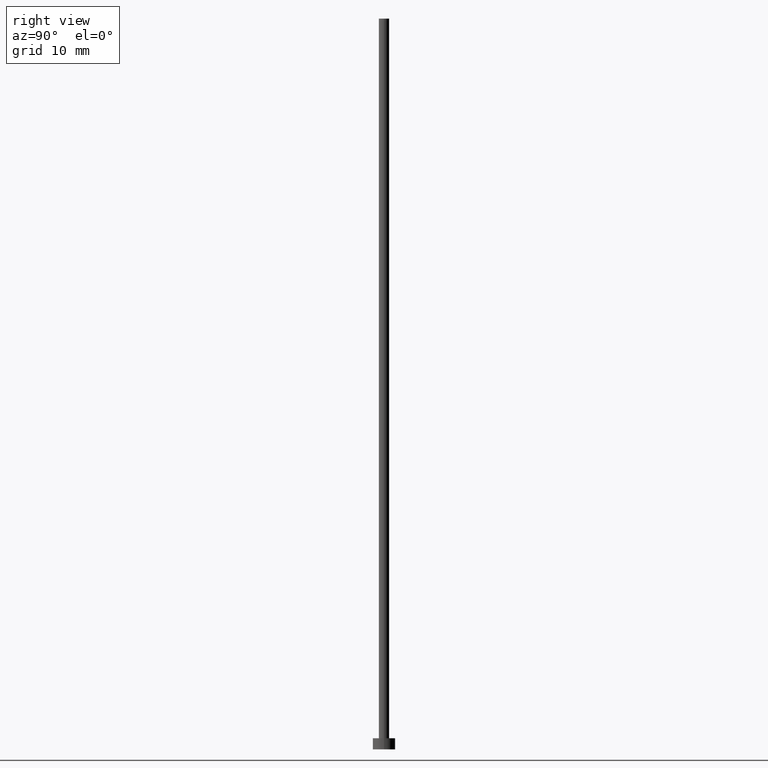
[diagram: clean part render]
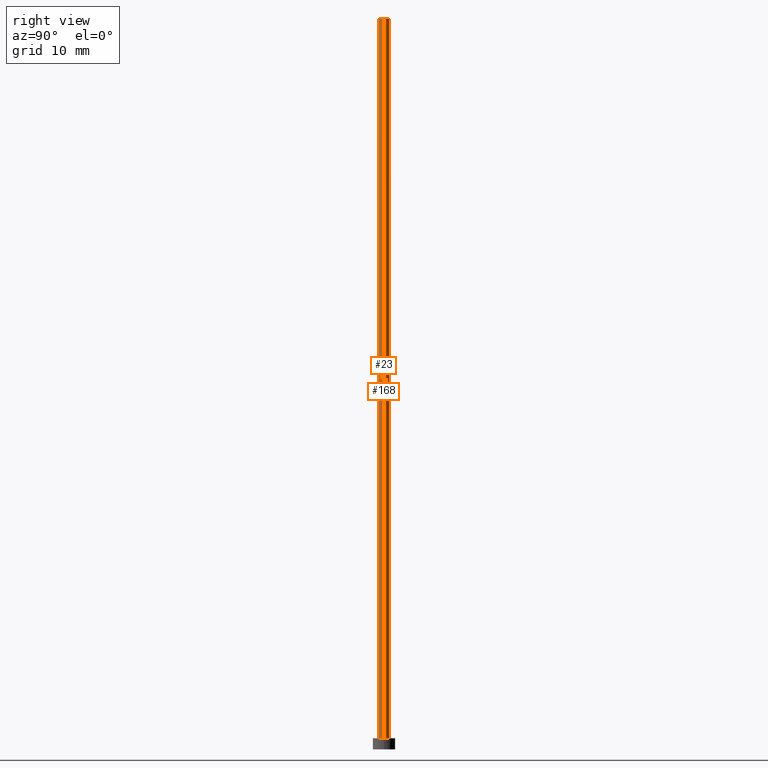
[diagram: same view with one multi-face feature highlighted, each face labeled with its STEP entity id]
A machine part, right view. The highlighted faces form ONE feature: a constant-radius fillet chain: 2 tangent blend faces with common blend radius 0.7 mm. The faces share edges in the B-rep.
Their STEP definitions:
[1] entity #168 (Cylinder):
#5 = ORIENTED_EDGE ( 'NONE', *, *, #35, .F. ) ;
#8 = VERTEX_POINT ( 'NONE', #9 ) ;
#9 = CARTESIAN_POINT ( 'NONE',  ( -0.6999999999999999556, 0.000000000000000000, 98.00000000000000000 ) ) ;
#14 = CYLINDRICAL_SURFACE ( 'NONE', #42, 0.6999999999999999556 ) ;
#15 = CIRCLE ( 'NONE', #65, 0.6999999999999999556 ) ;
#19 = CARTESIAN_POINT ( 'NONE',  ( 0.6999999999999999556, 8.572527594031471957E-17, 98.00000000000000000 ) ) ;
#31 = VERTEX_POINT ( 'NONE', #226 ) ;
#35 = EDGE_CURVE ( 'NONE', #8, #51, #152, .T. ) ;
#42 = AXIS2_PLACEMENT_3D ( 'NONE', #140, #95, #213 ) ;
#45 = EDGE_CURVE ( 'NONE', #211, #8, #190, .T. ) ;
#47 = CARTESIAN_POINT ( 'NONE',  ( 0.000000000000000000, 0.000000000000000000, 98.00000000000000000 ) ) ;
#49 = ORIENTED_EDGE ( 'NONE', *, *, #217, .T. ) ;
#51 = VERTEX_POINT ( 'NONE', #178 ) ;
#65 = AXIS2_PLACEMENT_3D ( 'NONE', #93, #98, #203 ) ;
#93 = CARTESIAN_POINT ( 'NONE',  ( 0.000000000000000000, 0.000000000000000000, 1.500000000000000000 ) ) ;
#95 = DIRECTION ( 'NONE',  ( -0.000000000000000000, -0.000000000000000000, -1.000000000000000000 ) ) ;
#98 = DIRECTION ( 'NONE',  ( 0.000000000000000000, 0.000000000000000000, 1.000000000000000000 ) ) ;
#122 = CARTESIAN_POINT ( 'NONE',  ( 0.6999999999999999556, 8.572527594031471957E-17, 98.00000000000000000 ) ) ;
#129 = AXIS2_PLACEMENT_3D ( 'NONE', #47, #247, #249 ) ;
#136 = EDGE_LOOP ( 'NONE', ( #248, #49, #230, #5 ) ) ;
#140 = CARTESIAN_POINT ( 'NONE',  ( 0.000000000000000000, 0.000000000000000000, 98.00000000000000000 ) ) ;
#152 = LINE ( 'NONE', #193, #228 ) ;
#168 = ADVANCED_FACE ( 'NONE', ( #197 ), #14, .T. ) ;
#169 = VECTOR ( 'NONE', #232, 1000.000000000000000 ) ;
#175 = DIRECTION ( 'NONE',  ( -0.000000000000000000, -0.000000000000000000, -1.000000000000000000 ) ) ;
#178 = CARTESIAN_POINT ( 'NONE',  ( -0.6999999999999999556, 0.000000000000000000, 1.500000000000000000 ) ) ;
#179 = LINE ( 'NONE', #19, #169 ) ;
#190 = CIRCLE ( 'NONE', #129, 0.6999999999999999556 ) ;
#193 = CARTESIAN_POINT ( 'NONE',  ( -0.6999999999999999556, 0.000000000000000000, 98.00000000000000000 ) ) ;
#197 = FACE_OUTER_BOUND ( 'NONE', #136, .T. ) ;
#203 = DIRECTION ( 'NONE',  ( 1.000000000000000000, 0.000000000000000000, 0.000000000000000000 ) ) ;
#211 = VERTEX_POINT ( 'NONE', #122 ) ;
#213 = DIRECTION ( 'NONE',  ( -1.000000000000000000, 0.000000000000000000, 0.000000000000000000 ) ) ;
#217 = EDGE_CURVE ( 'NONE', #211, #31, #179, .T. ) ;
#225 = EDGE_CURVE ( 'NONE', #31, #51, #15, .T. ) ;
#226 = CARTESIAN_POINT ( 'NONE',  ( 0.6999999999999999556, 8.572527594031471957E-17, 1.500000000000000000 ) ) ;
#228 = VECTOR ( 'NONE', #175, 1000.000000000000000 ) ;
#230 = ORIENTED_EDGE ( 'NONE', *, *, #225, .T. ) ;
#232 = DIRECTION ( 'NONE',  ( -0.000000000000000000, -0.000000000000000000, -1.000000000000000000 ) ) ;
#247 = DIRECTION ( 'NONE',  ( 0.000000000000000000, 0.000000000000000000, 1.000000000000000000 ) ) ;
#248 = ORIENTED_EDGE ( 'NONE', *, *, #45, .F. ) ;
#249 = DIRECTION ( 'NONE',  ( 1.000000000000000000, 0.000000000000000000, 0.000000000000000000 ) ) ;
[2] entity #23 (Cylinder):
#6 = DIRECTION ( 'NONE',  ( -0.000000000000000000, -0.000000000000000000, -1.000000000000000000 ) ) ;
#8 = VERTEX_POINT ( 'NONE', #9 ) ;
#9 = CARTESIAN_POINT ( 'NONE',  ( -0.6999999999999999556, 0.000000000000000000, 98.00000000000000000 ) ) ;
#18 = AXIS2_PLACEMENT_3D ( 'NONE', #87, #6, #155 ) ;
#19 = CARTESIAN_POINT ( 'NONE',  ( 0.6999999999999999556, 8.572527594031471957E-17, 98.00000000000000000 ) ) ;
#23 = ADVANCED_FACE ( 'NONE', ( #138 ), #33, .T. ) ;
#31 = VERTEX_POINT ( 'NONE', #226 ) ;
#33 = CYLINDRICAL_SURFACE ( 'NONE', #18, 0.6999999999999999556 ) ;
#35 = EDGE_CURVE ( 'NONE', #8, #51, #152, .T. ) ;
#51 = VERTEX_POINT ( 'NONE', #178 ) ;
#67 = ORIENTED_EDGE ( 'NONE', *, *, #92, .F. ) ;
#72 = AXIS2_PLACEMENT_3D ( 'NONE', #192, #75, #162 ) ;
#75 = DIRECTION ( 'NONE',  ( 0.000000000000000000, 0.000000000000000000, 1.000000000000000000 ) ) ;
#87 = CARTESIAN_POINT ( 'NONE',  ( 0.000000000000000000, 0.000000000000000000, 98.00000000000000000 ) ) ;
#89 = EDGE_LOOP ( 'NONE', ( #191, #67, #110, #208 ) ) ;
#92 = EDGE_CURVE ( 'NONE', #8, #211, #135, .T. ) ;
#110 = ORIENTED_EDGE ( 'NONE', *, *, #35, .T. ) ;
#122 = CARTESIAN_POINT ( 'NONE',  ( 0.6999999999999999556, 8.572527594031471957E-17, 98.00000000000000000 ) ) ;
#135 = CIRCLE ( 'NONE', #72, 0.6999999999999999556 ) ;
#138 = FACE_OUTER_BOUND ( 'NONE', #89, .T. ) ;
#143 = CARTESIAN_POINT ( 'NONE',  ( 0.000000000000000000, 0.000000000000000000, 1.500000000000000000 ) ) ;
#152 = LINE ( 'NONE', #193, #228 ) ;
#155 = DIRECTION ( 'NONE',  ( -1.000000000000000000, 0.000000000000000000, 0.000000000000000000 ) ) ;
#162 = DIRECTION ( 'NONE',  ( 1.000000000000000000, 0.000000000000000000, 0.000000000000000000 ) ) ;
#169 = VECTOR ( 'NONE', #232, 1000.000000000000000 ) ;
#172 = AXIS2_PLACEMENT_3D ( 'NONE', #143, #253, #186 ) ;
#175 = DIRECTION ( 'NONE',  ( -0.000000000000000000, -0.000000000000000000, -1.000000000000000000 ) ) ;
#178 = CARTESIAN_POINT ( 'NONE',  ( -0.6999999999999999556, 0.000000000000000000, 1.500000000000000000 ) ) ;
#179 = LINE ( 'NONE', #19, #169 ) ;
#185 = CIRCLE ( 'NONE', #172, 0.6999999999999999556 ) ;
#186 = DIRECTION ( 'NONE',  ( 1.000000000000000000, 0.000000000000000000, 0.000000000000000000 ) ) ;
#191 = ORIENTED_EDGE ( 'NONE', *, *, #217, .F. ) ;
#192 = CARTESIAN_POINT ( 'NONE',  ( 0.000000000000000000, 0.000000000000000000, 98.00000000000000000 ) ) ;
#193 = CARTESIAN_POINT ( 'NONE',  ( -0.6999999999999999556, 0.000000000000000000, 98.00000000000000000 ) ) ;
#208 = ORIENTED_EDGE ( 'NONE', *, *, #242, .T. ) ;
#211 = VERTEX_POINT ( 'NONE', #122 ) ;
#217 = EDGE_CURVE ( 'NONE', #211, #31, #179, .T. ) ;
#226 = CARTESIAN_POINT ( 'NONE',  ( 0.6999999999999999556, 8.572527594031471957E-17, 1.500000000000000000 ) ) ;
#228 = VECTOR ( 'NONE', #175, 1000.000000000000000 ) ;
#232 = DIRECTION ( 'NONE',  ( -0.000000000000000000, -0.000000000000000000, -1.000000000000000000 ) ) ;
#242 = EDGE_CURVE ( 'NONE', #51, #31, #185, .T. ) ;
#253 = DIRECTION ( 'NONE',  ( 0.000000000000000000, 0.000000000000000000, 1.000000000000000000 ) ) ;